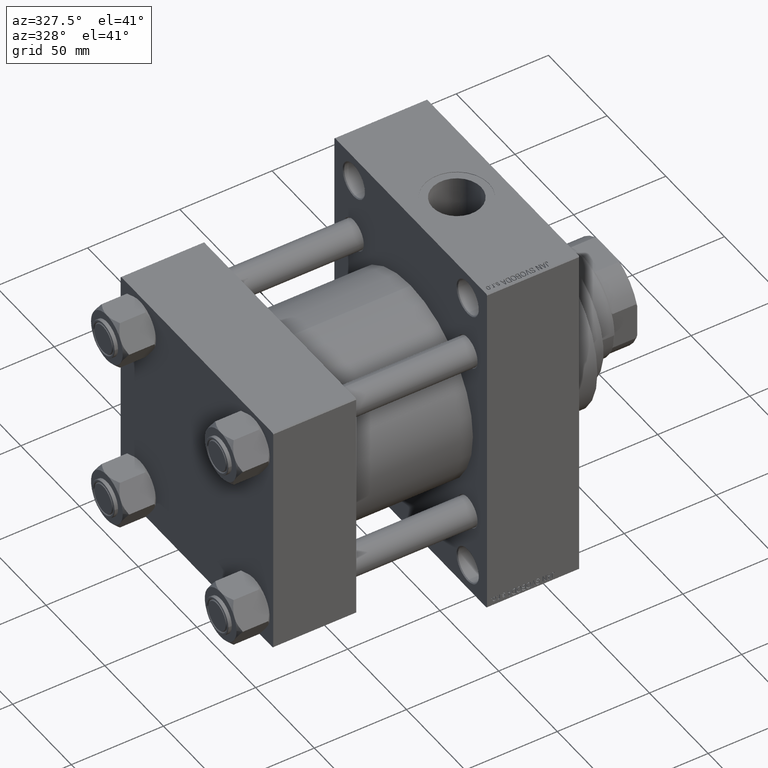
[diagram: clean part render]
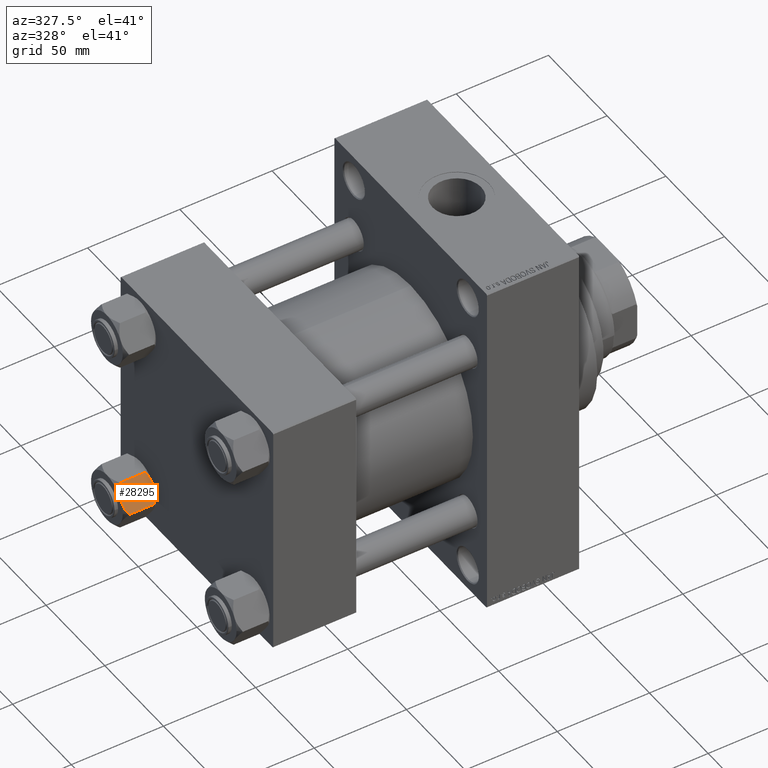
[diagram: same view with one face highlighted and labeled with its STEP entity id]
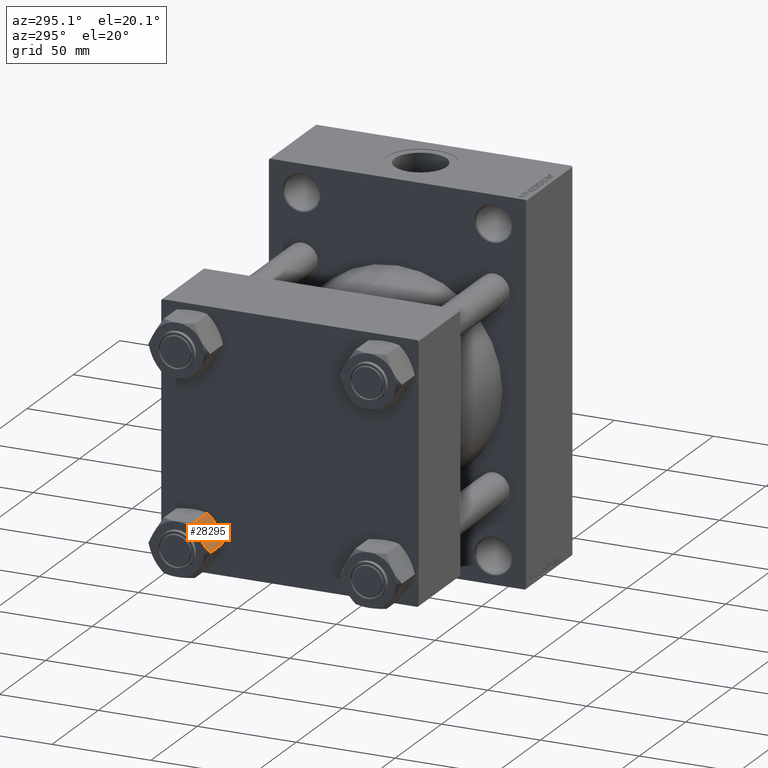
[diagram: same view with one face highlighted and labeled with its STEP entity id]
A machine part, auxiliary view. The second image highlights one B-rep face of the part: STEP entity #28295.
A second angle (auxiliary view) of the same face is appended — the face is thin or edge-on in the first view.
In plain terms, the highlighted planar face has unit normal (-0, 0.866, -0.5).
Its self-contained STEP definition (entity closure, byte-faithful):
#1077 = DIRECTION ( 'NONE',  ( -0.8660254037844387076, -0.4999999999999999445, 0.000000000000000000 ) ) ;
#1534 = VERTEX_POINT ( 'NONE', #35304 ) ;
#1632 = CARTESIAN_POINT ( 'NONE',  ( 15.62000000000000455, -1.379485931020374819E-15, -1.999999999999998224 ) ) ;
#1864 = CARTESIAN_POINT ( 'NONE',  ( 8.202637790192646605, 12.84724820552771085, -1.706311779141445717 ) ) ;
#2338 = CARTESIAN_POINT ( 'NONE',  ( 14.31545111198821552, 2.259544954993893295, -0.9142282604026940040 ) ) ;
#2825 = AXIS2_PLACEMENT_3D ( 'NONE', #26429, #1077, #23275 ) ;
#3139 = EDGE_CURVE ( 'NONE', #44119, #6611, #23871, .T. ) ;
#4252 = CARTESIAN_POINT ( 'NONE',  ( 15.52647173767732980, 0.1619957022865022300, -2.000000000000000000 ) ) ;
#4462 = EDGE_CURVE ( 'NONE', #1534, #44119, #34542, .T. ) ;
#5122 = VERTEX_POINT ( 'NONE', #35288 ) ;
#6482 = ORIENTED_EDGE ( 'NONE', *, *, #4462, .F. ) ;
#6611 = VERTEX_POINT ( 'NONE', #41271 ) ;
#6999 = CARTESIAN_POINT ( 'NONE',  ( 11.71500000000000519, 6.763658403556469523, -18.00000000000000000 ) ) ;
#8686 = CARTESIAN_POINT ( 'NONE',  ( 11.71500000000000519, 6.763658403556469523, -18.00000000000000000 ) ) ;
#9246 = CARTESIAN_POINT ( 'NONE',  ( 15.62000000000000455, -1.379485931020374819E-15, -16.00000000000000000 ) ) ;
#10056 = CARTESIAN_POINT ( 'NONE',  ( 11.71500000000000519, 6.763658403556469523, 0.000000000000000000 ) ) ;
#10600 = CARTESIAN_POINT ( 'NONE',  ( 10.06459418565412278, 9.622245127110613083, -17.61639331488794014 ) ) ;
#10849 = DIRECTION ( 'NONE',  ( 0.4999999999999999445, -0.8660254037844387076, 0.000000000000000000 ) ) ;
#11308 = ORIENTED_EDGE ( 'NONE', *, *, #45665, .F. ) ;
#11705 = FACE_OUTER_BOUND ( 'NONE', #33041, .T. ) ;
#12077 = VERTEX_POINT ( 'NONE', #9246 ) ;
#12950 = CARTESIAN_POINT ( 'NONE',  ( 11.05297796109638320, 7.910314210667883650, 2.165016213181991667E-15 ) ) ;
#13010 = CARTESIAN_POINT ( 'NONE',  ( 15.22736220980735844, 0.6800686015852226429, -16.29368822085855228 ) ) ;
#13113 = CARTESIAN_POINT ( 'NONE',  ( 15.62000000000000455, -1.379485931020374819E-15, -18.00000000000000000 ) ) ;
#13199 = CARTESIAN_POINT ( 'NONE',  ( 10.40215497533437450, 9.037572688741345672, -0.1971866459924547788 ) ) ;
#13252 = CARTESIAN_POINT ( 'NONE',  ( 7.810000000000001386, 13.52731680711293905, -1.999999999999998224 ) ) ;
#13911 = CARTESIAN_POINT ( 'NONE',  ( 11.71500000000000519, 6.763658403556469523, 0.000000000000000000 ) ) ;
#14236 = CARTESIAN_POINT ( 'NONE',  ( 7.903528262322677023, 13.36532110482643176, -16.00000000000000000 ) ) ;
#16931 = EDGE_CURVE ( 'NONE', #43118, #45073, #26047, .T. ) ;
#17519 = CARTESIAN_POINT ( 'NONE',  ( 12.04818928091285812, 6.186557640478062225, 2.165016213181991667E-15 ) ) ;
#18402 = VECTOR ( 'NONE', #43559, 999.9999999999998863 ) ;
#18994 = LINE ( 'NONE', #45300, #25977 ) ;
#19415 = EDGE_CURVE ( 'NONE', #22050, #5122, #27358, .T. ) ;
#19783 = CARTESIAN_POINT ( 'NONE',  ( 13.02784502466562699, 4.489744118371587156, -17.80281335400755083 ) ) ;
#20016 = CARTESIAN_POINT ( 'NONE',  ( 14.30591678195076355, 2.276058899034896221, -17.05261278537718184 ) ) ;
#20704 = DIRECTION ( 'NONE',  ( -0.4999999999999999445, 0.8660254037844387076, 0.000000000000000000 ) ) ;
#21750 = ORIENTED_EDGE ( 'NONE', *, *, #19415, .F. ) ;
#22050 = VERTEX_POINT ( 'NONE', #31635 ) ;
#22247 = ORIENTED_EDGE ( 'NONE', *, *, #36277, .F. ) ;
#22408 = ORIENTED_EDGE ( 'NONE', *, *, #16931, .F. ) ;
#22470 = ORIENTED_EDGE ( 'NONE', *, *, #23267, .F. ) ;
#23039 = PLANE ( 'NONE',  #2825 ) ;
#23267 = EDGE_CURVE ( 'NONE', #36105, #1534, #42346, .T. ) ;
#23275 = DIRECTION ( 'NONE',  ( 0.4999999999999998890, -0.8660254037844385966, 0.000000000000000000 ) ) ;
#23871 = LINE ( 'NONE', #13252, #26120 ) ;
#24044 = CARTESIAN_POINT ( 'NONE',  ( 13.04337073483128506, 4.462852799541082938, -0.2430846701012968347 ) ) ;
#24933 = VECTOR ( 'NONE', #10849, 999.9999999999998863 ) ;
#25333 = CARTESIAN_POINT ( 'NONE',  ( 10.38662926516872353, 9.064464007571851667, -17.75691532989870680 ) ) ;
#25977 = VECTOR ( 'NONE', #30089, 1000.000000000000000 ) ;
#26047 = LINE ( 'NONE', #32575, #24933 ) ;
#26120 = VECTOR ( 'NONE', #42464, 999.9999999999998863 ) ;
#26326 = B_SPLINE_CURVE_WITH_KNOTS ( 'NONE', 3,
 ( #14236, #28947, #43693, #10600, #25333, #40056, #36432, #6999 ),
 .UNSPECIFIED., .F., .F.,
 ( 4, 2, 2, 4 ),
 ( 4.472842641813524820E-07, 0.003945636373369301383, 0.005918230917921860935, 0.007890825462474420487 ),
 .UNSPECIFIED. ) ;
#26429 = CARTESIAN_POINT ( 'NONE',  ( 7.810000000000001386, 13.52731680711293905, -18.00000000000000000 ) ) ;
#27358 = B_SPLINE_CURVE_WITH_KNOTS ( 'NONE', 3,
 ( #8686, #34966, #19783, #45631, #20016, #45857, #13010, #34733 ),
 .UNSPECIFIED., .F., .F.,
 ( 4, 2, 2, 4 ),
 ( 0.007890825462474420487, 0.01181022244528553804, 0.01376992093669109421, 0.01572961942809665212 ),
 .UNSPECIFIED. ) ;
#27829 = DIRECTION ( 'NONE',  ( -0.000000000000000000, -0.000000000000000000, 1.000000000000000000 ) ) ;
#28153 = CARTESIAN_POINT ( 'NONE',  ( 9.124083218049239719, 11.25125790807803483, -0.9473872146228128344 ) ) ;
#28295 = ADVANCED_FACE ( 'NONE', ( #11705 ), #23039, .F. ) ;
#28820 = CARTESIAN_POINT ( 'NONE',  ( 7.903528262322677023, 13.36532110482643176, -16.00000000000000000 ) ) ;
#28947 = CARTESIAN_POINT ( 'NONE',  ( 8.502393313253755025, 12.32805640973648309, -16.58801072835992585 ) ) ;
#29537 = LINE ( 'NONE', #44287, #18402 ) ;
#30089 = DIRECTION ( 'NONE',  ( -0.000000000000000000, -0.000000000000000000, 1.000000000000000000 ) ) ;
#30128 = ORIENTED_EDGE ( 'NONE', *, *, #31996, .T. ) ;
#30736 = LINE ( 'NONE', #13113, #36821 ) ;
#31053 = CARTESIAN_POINT ( 'NONE',  ( 9.439480280627263298, 10.70497417113492489, -0.7317196846281137645 ) ) ;
#31121 = ORIENTED_EDGE ( 'NONE', *, *, #34324, .F. ) ;
#31635 = CARTESIAN_POINT ( 'NONE',  ( 11.71500000000000519, 6.763658403556469523, -18.00000000000000000 ) ) ;
#31765 = CARTESIAN_POINT ( 'NONE',  ( 13.36540581434588049, 3.905071680002324630, -0.3836066851120584764 ) ) ;
#31798 = EDGE_CURVE ( 'NONE', #42585, #36105, #42683, .T. ) ;
#31996 = EDGE_CURVE ( 'NONE', #43118, #6611, #18994, .T. ) ;
#32575 = CARTESIAN_POINT ( 'NONE',  ( 7.810000000000001386, 13.52731680711293905, -16.00000000000000000 ) ) ;
#33041 = EDGE_LOOP ( 'NONE', ( #22408, #30128, #35191, #6482, #22470, #39531, #31121, #22247, #21750, #11308 ) ) ;
#34324 = EDGE_CURVE ( 'NONE', #12077, #42585, #30736, .T. ) ;
#34542 = B_SPLINE_CURVE_WITH_KNOTS ( 'NONE', 3,
 ( #10056, #12950, #13199, #31053, #28153, #39262, #1864, #39016 ),
 .UNSPECIFIED., .F., .F.,
 ( 4, 2, 2, 4 ),
 ( 0.007890825462474437835, 0.01181022244528555538, 0.01376992093669111156, 0.01572961942809666946 ),
 .UNSPECIFIED. ) ;
#34733 = CARTESIAN_POINT ( 'NONE',  ( 15.52647173767732980, 0.1619957022865022300, -16.00000000000000000 ) ) ;
#34966 = CARTESIAN_POINT ( 'NONE',  ( 12.37702203890362895, 5.617002596445055396, -18.00000000000001066 ) ) ;
#35191 = ORIENTED_EDGE ( 'NONE', *, *, #3139, .F. ) ;
#35288 = CARTESIAN_POINT ( 'NONE',  ( 15.52647173767732980, 0.1619957022865022300, -16.00000000000000000 ) ) ;
#35304 = CARTESIAN_POINT ( 'NONE',  ( 11.71500000000000519, 6.763658403556469523, 0.000000000000000000 ) ) ;
#35371 = CARTESIAN_POINT ( 'NONE',  ( 15.52647173767732980, 0.1619957022865022300, -2.000000000000000000 ) ) ;
#36105 = VERTEX_POINT ( 'NONE', #4252 ) ;
#36277 = EDGE_CURVE ( 'NONE', #5122, #12077, #29537, .T. ) ;
#36432 = CARTESIAN_POINT ( 'NONE',  ( 11.38181071908714870, 7.340759166634869715, -18.00000000000000355 ) ) ;
#36821 = VECTOR ( 'NONE', #27829, 1000.000000000000000 ) ;
#38943 = CARTESIAN_POINT ( 'NONE',  ( 7.810000000000000497, 13.52731680711293905, -16.00000000000000000 ) ) ;
#39005 = VECTOR ( 'NONE', #20704, 999.9999999999998863 ) ;
#39016 = CARTESIAN_POINT ( 'NONE',  ( 7.903528262322677023, 13.36532110482643176, -2.000000000000000000 ) ) ;
#39262 = CARTESIAN_POINT ( 'NONE',  ( 8.506059550806622127, 12.32170630002230283, -1.434462921875002683 ) ) ;
#39484 = CARTESIAN_POINT ( 'NONE',  ( 14.92760668674625002, 1.199260397376449072, -1.411989271640066601 ) ) ;
#39531 = ORIENTED_EDGE ( 'NONE', *, *, #31798, .F. ) ;
#40056 = CARTESIAN_POINT ( 'NONE',  ( 11.04378428799595468, 7.926238119586002995, -17.94910618364699317 ) ) ;
#41271 = CARTESIAN_POINT ( 'NONE',  ( 7.810000000000000497, 13.52731680711293905, -1.999999999999998224 ) ) ;
#42345 = CARTESIAN_POINT ( 'NONE',  ( 7.903528262322677023, 13.36532110482643176, -2.000000000000000000 ) ) ;
#42346 = B_SPLINE_CURVE_WITH_KNOTS ( 'NONE', 3,
 ( #35371, #39484, #2338, #31765, #24044, #46260, #17519, #13911 ),
 .UNSPECIFIED., .F., .F.,
 ( 4, 2, 2, 4 ),
 ( 4.472842641970240738E-07, 0.003945636373369317863, 0.005918230917921878283, 0.007890825462474437835 ),
 .UNSPECIFIED. ) ;
#42464 = DIRECTION ( 'NONE',  ( -0.4999999999999999445, 0.8660254037844387076, 0.000000000000000000 ) ) ;
#42585 = VERTEX_POINT ( 'NONE', #1632 ) ;
#42683 = LINE ( 'NONE', #45830, #39005 ) ;
#43118 = VERTEX_POINT ( 'NONE', #38943 ) ;
#43559 = DIRECTION ( 'NONE',  ( 0.4999999999999999445, -0.8660254037844387076, 0.000000000000000000 ) ) ;
#43693 = CARTESIAN_POINT ( 'NONE',  ( 9.114548888011785976, 11.26777185211903998, -17.08577173959729478 ) ) ;
#44119 = VERTEX_POINT ( 'NONE', #42345 ) ;
#44287 = CARTESIAN_POINT ( 'NONE',  ( 7.810000000000001386, 13.52731680711293905, -16.00000000000000000 ) ) ;
#45073 = VERTEX_POINT ( 'NONE', #28820 ) ;
#45300 = CARTESIAN_POINT ( 'NONE',  ( 7.810000000000001386, 13.52731680711293905, -18.00000000000000000 ) ) ;
#45631 = CARTESIAN_POINT ( 'NONE',  ( 13.99051971937273997, 2.822342635978008385, -17.26828031537188934 ) ) ;
#45665 = EDGE_CURVE ( 'NONE', #45073, #22050, #26326, .T. ) ;
#45830 = CARTESIAN_POINT ( 'NONE',  ( 7.810000000000001386, 13.52731680711293905, -1.999999999999998224 ) ) ;
#45857 = CARTESIAN_POINT ( 'NONE',  ( 14.92394044919338114, 1.205610507090631334, -16.56553707812499354 ) ) ;
#46260 = CARTESIAN_POINT ( 'NONE',  ( 12.38621571200405924, 5.601078687526928945, -0.05089381635301384876 ) ) ;